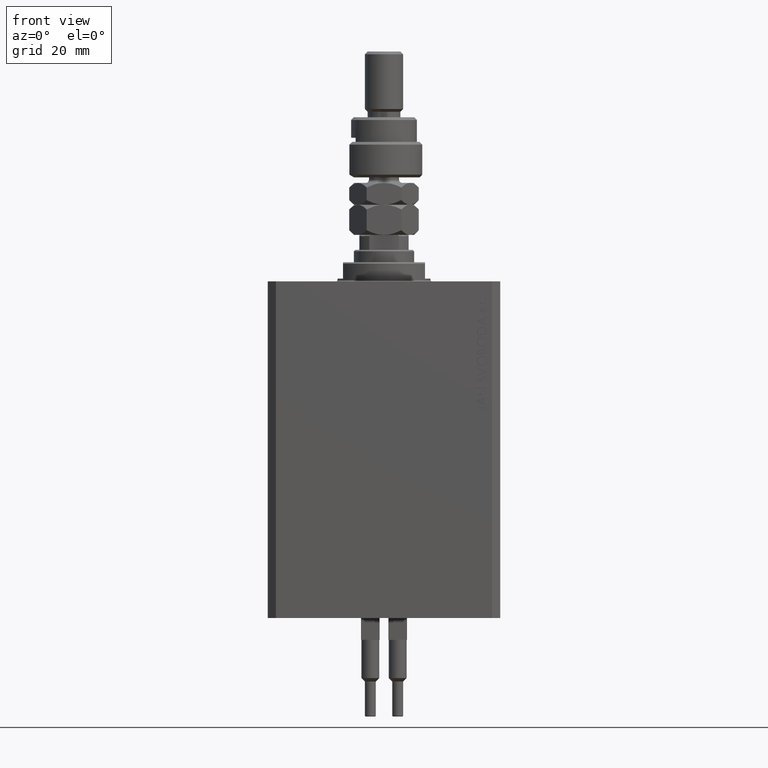
[diagram: clean part render]
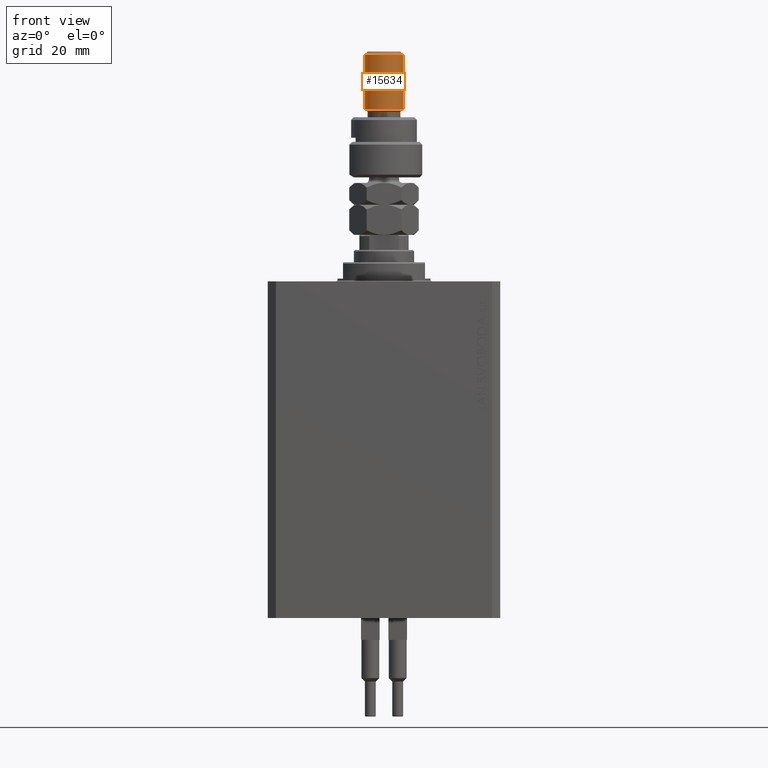
[diagram: same view with one face highlighted and labeled with its STEP entity id]
A machine part, front view. The second image highlights one B-rep face of the part: STEP entity #15634.
In plain terms, the highlighted cylindrical surface (edge-blend (fillet) strip) has radius 7 mm, axis along (-0, -0, -1).
Its self-contained STEP definition (entity closure, byte-faithful):
#933 = DIRECTION ( 'NONE',  ( 1.000000000000000000, 0.000000000000000000, 0.000000000000000000 ) ) ;
#2565 = VECTOR ( 'NONE', #35645, 1000.000000000000000 ) ;
#3048 = AXIS2_PLACEMENT_3D ( 'NONE', #43464, #43965, #933 ) ;
#5661 = CIRCLE ( 'NONE', #12242, 7.000000000000000000 ) ;
#6196 = CARTESIAN_POINT ( 'NONE',  ( 7.000000000000000000, 8.572527594031473190E-16, 44.99999999999999289 ) ) ;
#6726 = EDGE_CURVE ( 'NONE', #25539, #41867, #36777, .T. ) ;
#7350 = CARTESIAN_POINT ( 'NONE',  ( 0.000000000000000000, 0.000000000000000000, 46.00000000000000000 ) ) ;
#10540 = CARTESIAN_POINT ( 'NONE',  ( -7.000000000000000000, 0.000000000000000000, 24.99999999999998934 ) ) ;
#11098 = EDGE_CURVE ( 'NONE', #49967, #43380, #5661, .T. ) ;
#11237 = DIRECTION ( 'NONE',  ( 1.000000000000000000, 0.000000000000000000, 0.000000000000000000 ) ) ;
#12212 = DIRECTION ( 'NONE',  ( -0.000000000000000000, -0.000000000000000000, -1.000000000000000000 ) ) ;
#12242 = AXIS2_PLACEMENT_3D ( 'NONE', #29785, #45532, #11237 ) ;
#13229 = CARTESIAN_POINT ( 'NONE',  ( 7.000000000000000000, 8.572527594031473190E-16, 46.00000000000000000 ) ) ;
#15634 = ADVANCED_FACE ( 'NONE', ( #27439 ), #31042, .T. ) ;
#16312 = CARTESIAN_POINT ( 'NONE',  ( -7.000000000000000000, 0.000000000000000000, 46.00000000000000000 ) ) ;
#18942 = DIRECTION ( 'NONE',  ( -0.000000000000000000, -0.000000000000000000, -1.000000000000000000 ) ) ;
#25539 = VERTEX_POINT ( 'NONE', #6196 ) ;
#25789 = ORIENTED_EDGE ( 'NONE', *, *, #45717, .F. ) ;
#27439 = FACE_OUTER_BOUND ( 'NONE', #31168, .T. ) ;
#29785 = CARTESIAN_POINT ( 'NONE',  ( 0.000000000000000000, 0.000000000000000000, 24.99999999999998934 ) ) ;
#31042 = CYLINDRICAL_SURFACE ( 'NONE', #44134, 7.000000000000000000 ) ;
#31168 = EDGE_LOOP ( 'NONE', ( #25789, #35097, #40140, #33207 ) ) ;
#33207 = ORIENTED_EDGE ( 'NONE', *, *, #11098, .T. ) ;
#34745 = CARTESIAN_POINT ( 'NONE',  ( 7.000000000000000000, 8.572527594031473190E-16, 24.99999999999998934 ) ) ;
#35097 = ORIENTED_EDGE ( 'NONE', *, *, #6726, .T. ) ;
#35596 = VECTOR ( 'NONE', #12212, 1000.000000000000000 ) ;
#35645 = DIRECTION ( 'NONE',  ( -0.000000000000000000, -0.000000000000000000, -1.000000000000000000 ) ) ;
#36777 = CIRCLE ( 'NONE', #3048, 7.000000000000000000 ) ;
#37375 = CARTESIAN_POINT ( 'NONE',  ( -7.000000000000000000, 0.000000000000000000, 44.99999999999999289 ) ) ;
#38211 = EDGE_CURVE ( 'NONE', #41867, #49967, #39269, .T. ) ;
#39269 = LINE ( 'NONE', #16312, #2565 ) ;
#40140 = ORIENTED_EDGE ( 'NONE', *, *, #38211, .T. ) ;
#41867 = VERTEX_POINT ( 'NONE', #37375 ) ;
#43380 = VERTEX_POINT ( 'NONE', #34745 ) ;
#43464 = CARTESIAN_POINT ( 'NONE',  ( 0.000000000000000000, 0.000000000000000000, 44.99999999999999289 ) ) ;
#43965 = DIRECTION ( 'NONE',  ( 0.000000000000000000, 0.000000000000000000, -1.000000000000000000 ) ) ;
#44134 = AXIS2_PLACEMENT_3D ( 'NONE', #7350, #18942, #46788 ) ;
#44679 = LINE ( 'NONE', #13229, #35596 ) ;
#45532 = DIRECTION ( 'NONE',  ( -0.000000000000000000, -0.000000000000000000, 1.000000000000000000 ) ) ;
#45717 = EDGE_CURVE ( 'NONE', #25539, #43380, #44679, .T. ) ;
#46788 = DIRECTION ( 'NONE',  ( -1.000000000000000000, 0.000000000000000000, 0.000000000000000000 ) ) ;
#49967 = VERTEX_POINT ( 'NONE', #10540 ) ;